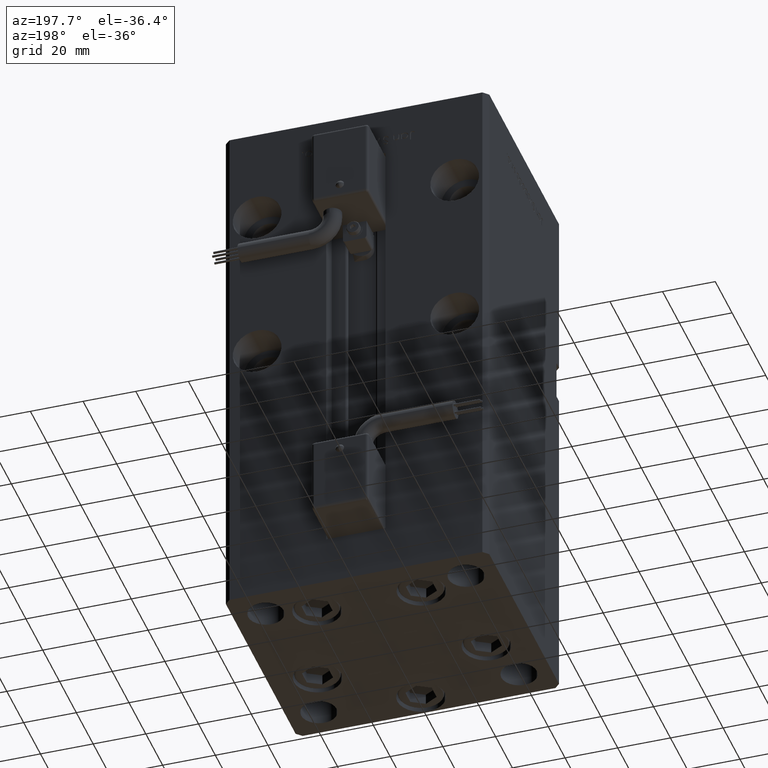
[diagram: clean part render]
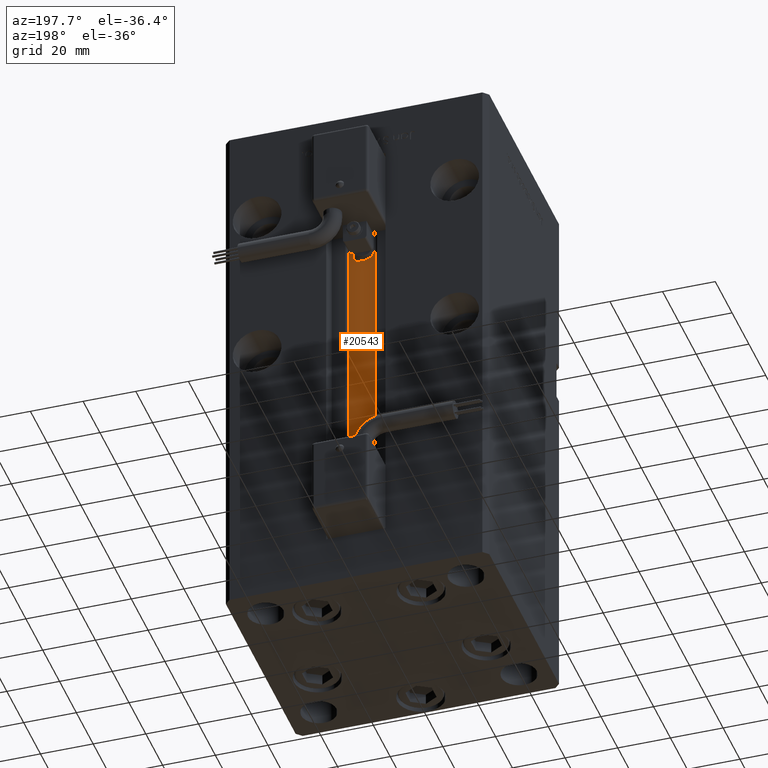
[diagram: same view with one face highlighted and labeled with its STEP entity id]
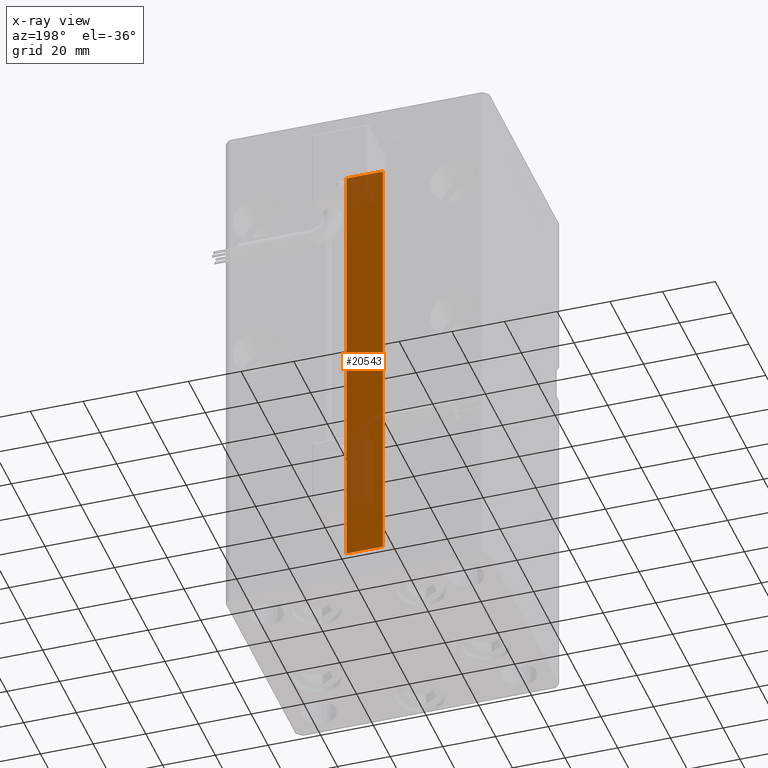
[diagram: x-ray of the same camera — body ghosted, the highlighted face saturated]
A machine part, auxiliary view. The second image highlights one B-rep face of the part: STEP entity #20543.
The next image is the same camera in x-ray: the body ghosted, the highlighted face saturated — about 22% of this face is hidden behind the body in this view.
In plain terms, the highlighted planar face has unit normal (0, -1, 0).
Its self-contained STEP definition (entity closure, byte-faithful):
#66 = CARTESIAN_POINT ( 'NONE',  ( 6.876153656360465050, 32.99999999999986500, 0.000000000000000000 ) ) ;
#2148 = ORIENTED_EDGE ( 'NONE', *, *, #23914, .T. ) ;
#2314 = CARTESIAN_POINT ( 'NONE',  ( 6.876153656360465050, 32.99999999999986500, 0.000000000000000000 ) ) ;
#2882 = CARTESIAN_POINT ( 'NONE',  ( 6.876153656360465050, 32.99999999999986500, 0.000000000000000000 ) ) ;
#3577 = VERTEX_POINT ( 'NONE', #47346 ) ;
#6755 = AXIS2_PLACEMENT_3D ( 'NONE', #2314, #37114, #54513 ) ;
#8780 = VECTOR ( 'NONE', #30020, 1000.000000000000000 ) ;
#11270 = ORIENTED_EDGE ( 'NONE', *, *, #29200, .F. ) ;
#11448 = VECTOR ( 'NONE', #41161, 1000.000000000000000 ) ;
#14604 = LINE ( 'NONE', #21460, #8780 ) ;
#15105 = VECTOR ( 'NONE', #34879, 1000.000000000000000 ) ;
#15909 = VERTEX_POINT ( 'NONE', #2882 ) ;
#20543 = ADVANCED_FACE ( 'NONE', ( #49944 ), #45670, .F. ) ;
#21067 = ORIENTED_EDGE ( 'NONE', *, *, #26234, .F. ) ;
#21460 = CARTESIAN_POINT ( 'NONE',  ( 0.000000000000000000, 32.99999999999986500, 168.5000000000000000 ) ) ;
#23757 = CARTESIAN_POINT ( 'NONE',  ( -6.876153656360465050, 32.99999999999986500, 0.000000000000000000 ) ) ;
#23914 = EDGE_CURVE ( 'NONE', #30991, #3577, #28042, .T. ) ;
#26090 = EDGE_CURVE ( 'NONE', #15909, #34605, #30304, .T. ) ;
#26234 = EDGE_CURVE ( 'NONE', #34605, #3577, #14604, .T. ) ;
#28042 = LINE ( 'NONE', #23757, #11448 ) ;
#29200 = EDGE_CURVE ( 'NONE', #30991, #15909, #55730, .T. ) ;
#30020 = DIRECTION ( 'NONE',  ( -1.000000000000000000, 0.000000000000000000, 0.000000000000000000 ) ) ;
#30304 = LINE ( 'NONE', #66, #15105 ) ;
#30991 = VERTEX_POINT ( 'NONE', #46968 ) ;
#34245 = CARTESIAN_POINT ( 'NONE',  ( 6.876153656360465050, 32.99999999999986500, 168.5000000000000000 ) ) ;
#34605 = VERTEX_POINT ( 'NONE', #34245 ) ;
#34634 = ORIENTED_EDGE ( 'NONE', *, *, #26090, .F. ) ;
#34879 = DIRECTION ( 'NONE',  ( -0.000000000000000000, -0.000000000000000000, 1.000000000000000000 ) ) ;
#37114 = DIRECTION ( 'NONE',  ( 0.000000000000000000, -1.000000000000000000, -0.000000000000000000 ) ) ;
#39807 = VECTOR ( 'NONE', #46878, 1000.000000000000000 ) ;
#41161 = DIRECTION ( 'NONE',  ( -0.000000000000000000, -0.000000000000000000, 1.000000000000000000 ) ) ;
#42325 = EDGE_LOOP ( 'NONE', ( #34634, #11270, #2148, #21067 ) ) ;
#42894 = CARTESIAN_POINT ( 'NONE',  ( 6.876153656360465050, 32.99999999999986500, 0.000000000000000000 ) ) ;
#45670 = PLANE ( 'NONE',  #6755 ) ;
#46878 = DIRECTION ( 'NONE',  ( 1.000000000000000000, -0.000000000000000000, -0.000000000000000000 ) ) ;
#46968 = CARTESIAN_POINT ( 'NONE',  ( -6.876153656360465050, 32.99999999999986500, 0.000000000000000000 ) ) ;
#47346 = CARTESIAN_POINT ( 'NONE',  ( -6.876153656360465050, 32.99999999999986500, 168.5000000000000000 ) ) ;
#49944 = FACE_OUTER_BOUND ( 'NONE', #42325, .T. ) ;
#54513 = DIRECTION ( 'NONE',  ( 0.000000000000000000, 0.000000000000000000, -1.000000000000000000 ) ) ;
#55730 = LINE ( 'NONE', #42894, #39807 ) ;